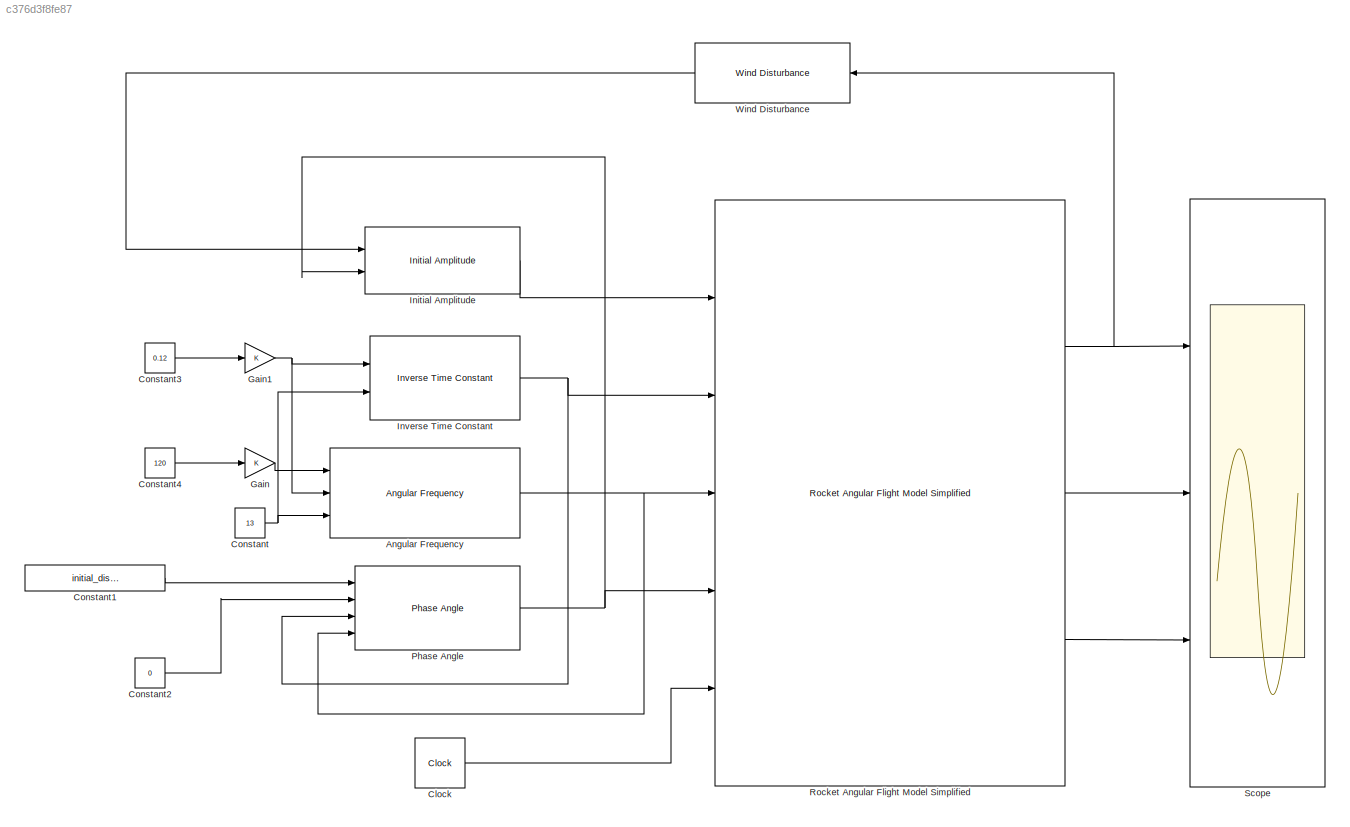
MODEL slx_c376d3f8fe87
KIND model
BLOCK [Reference] Angular Frequency  REF=rocket_angular_flight_library/Angular Frequency
  Ports = [3, 1]
  SourceBlock = rocket_angular_flight_library/Angular Frequency
  SourceType = SubSystem
BLOCK [Clock] Clock
BLOCK [Constant] Constant
  Value = 13
BLOCK [Constant] Constant1
  Value = initial_disturbance
BLOCK [Constant] Constant2
  Value = 0
BLOCK [Constant] Constant3
  Value = 0.12
BLOCK [Constant] Constant4
  Value = 120
BLOCK [Gain] Gain
  OutDataTypeStr = Inherit: Inherit via internal rule
  ParamDataTypeStr = Inherit: Inherit via internal rule
  SaturateOnIntegerOverflow = off
BLOCK [Gain] Gain1
  OutDataTypeStr = Inherit: Inherit via internal rule
  ParamDataTypeStr = Inherit: Inherit via internal rule
  SaturateOnIntegerOverflow = off
BLOCK [Reference] Initial Amplitude  REF=rocket_angular_flight_library/Initial Amplitude
  Ports = [2, 1]
  SourceBlock = rocket_angular_flight_library/Initial Amplitude
  SourceType = SubSystem
BLOCK [Reference] Inverse Time Constant  REF=rocket_angular_flight_library/Inverse Time Constant
  Ports = [2, 1]
  SourceBlock = rocket_angular_flight_library/Inverse Time Constant
  SourceType = SubSystem
BLOCK [Reference] Phase Angle  REF=rocket_angular_flight_library/Phase Angle
  Ports = [4, 1]
  SourceBlock = rocket_angular_flight_library/Phase Angle
  SourceType = SubSystem
BLOCK [Reference] Rocket Angular Flight Model Simplified  REF=rocket_angular_flight_library/Rocket Angular Flight Model
Simplified
  FunctionWithSeparateData = off
  GeneratePreprocessorConditionals = off
  Ports = [5, 3]
  ShowPortLabels = FromPortIcon
  SourceBlock = rocket_angular_flight_library/Rocket Angular Flight Model\nSimplified
  SystemSampleTime = -1
BLOCK [Scope] Scope
  DataFormat = StructureWithTime
  Floating = off
  NumInputPorts = 3
  Ports = [3]
  SampleTime = 0
  ShowLegends = off
  YMax = 5~5~5
  YMin = -5~-5~-5
BLOCK [Reference] Wind Disturbance  REF=rocket_angular_flight_library/Wind Disturbance
  Ports = [1, 1]
  SourceBlock = rocket_angular_flight_library/Wind Disturbance
  SourceType = SubSystem
NET Angular Frequency:1 -> Phase Angle:4, Rocket Angular Flight Model Simplified:3
LINE Clock:1 -> Rocket Angular Flight Model Simplified:5
LINE Constant1:1 -> Phase Angle:1
LINE Constant2:1 -> Phase Angle:2
LINE Constant3:1 -> Gain1:1
LINE Constant4:1 -> Gain:1
NET Constant:1 -> Angular Frequency:3, Inverse Time Constant:2
NET Gain1:1 -> Angular Frequency:2, Inverse Time Constant:1
LINE Gain:1 -> Angular Frequency:1
LINE Initial Amplitude:1 -> Rocket Angular Flight Model Simplified:1
NET Inverse Time Constant:1 -> Phase Angle:3, Rocket Angular Flight Model Simplified:2
NET Phase Angle:1 -> Initial Amplitude:2, Rocket Angular Flight Model Simplified:4
NET Rocket Angular Flight Model Simplified:1 -> Scope:1, Wind Disturbance:1
LINE Rocket Angular Flight Model Simplified:2 -> Scope:2
LINE Rocket Angular Flight Model Simplified:3 -> Scope:3
LINE Wind Disturbance:1 -> Initial Amplitude:1
note: NET lines group one-source signal fan-out (src -> all destinations, sorted); 1:1 wires keep LINE
